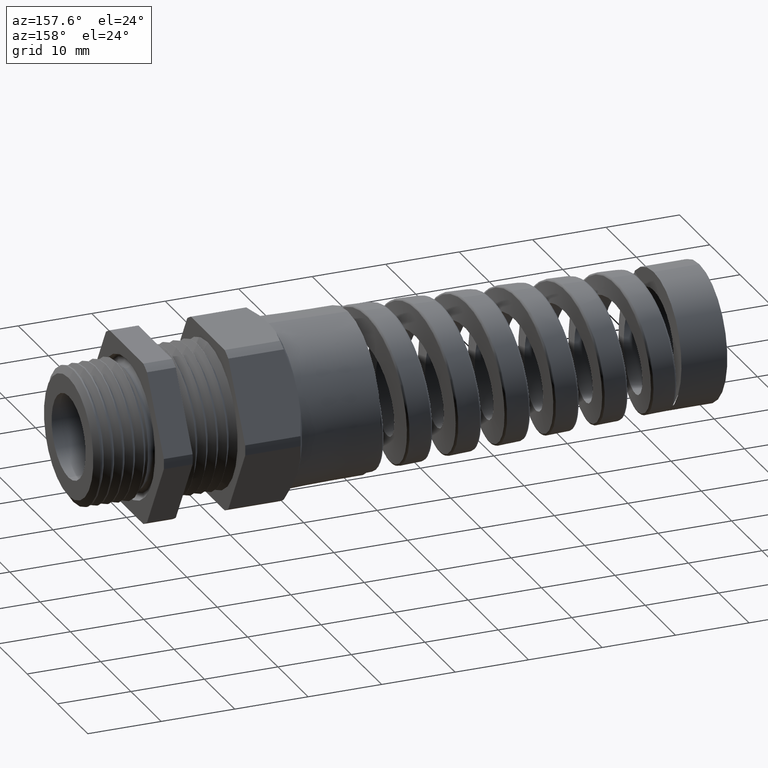
[diagram: clean part render]
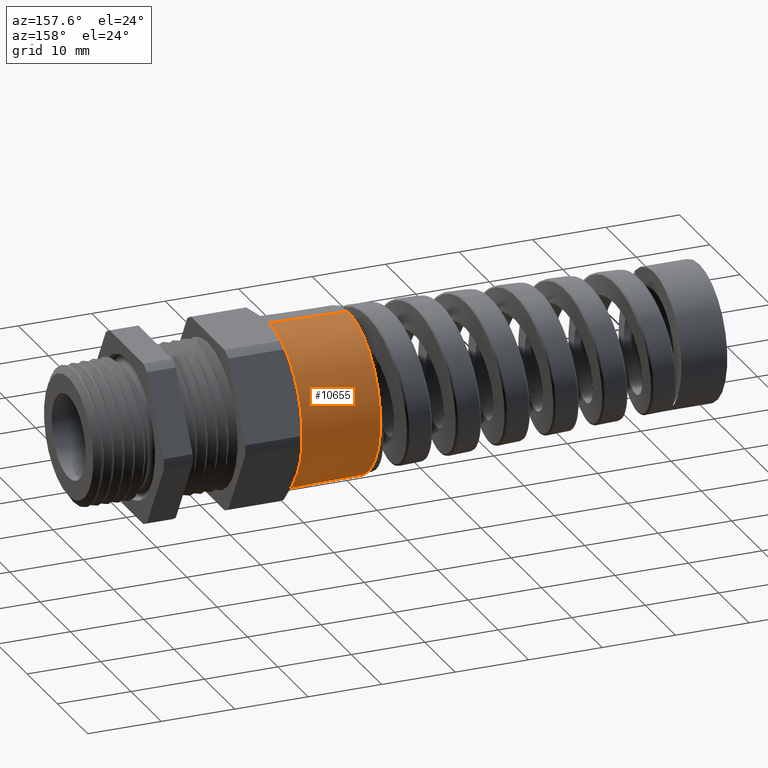
[diagram: same view with one face highlighted and labeled with its STEP entity id]
A machine part, auxiliary view. The second image highlights one B-rep face of the part: STEP entity #10655.
In plain terms, the highlighted conical surface has half-angle 1 deg.
Its self-contained STEP definition (entity closure, byte-faithful):
#1101 = VERTEX_POINT ( 'NONE', #1566 ) ;
#1103 = EDGE_CURVE ( 'NONE', #1131, #1104, #1565, .T. ) ;
#1104 = VERTEX_POINT ( 'NONE', #1561 ) ;
#1113 = VERTEX_POINT ( 'NONE', #1610 ) ;
#1115 = EDGE_CURVE ( 'NONE', #1101, #1113, #1609, .T. ) ;
#1131 = VERTEX_POINT ( 'NONE', #1642 ) ;
#1452 = VERTEX_POINT ( 'NONE', #3092 ) ;
#1552 = VERTEX_POINT ( 'NONE', #3139 ) ;
#1561 = CARTESIAN_POINT ( 'NONE',  ( -0.7624999999999999600, 0.0000000000000000000, -0.4350000000000001600 ) ) ;
#1562 = DIRECTION ( 'NONE',  ( 0.9998476951563912700, -2.137303368083796300E-018, -0.01745240643728355000 ) ) ;
#1563 = VECTOR ( 'NONE', #1562, 39.37007874015748100 ) ;
#1564 = CARTESIAN_POINT ( 'NONE',  ( -0.7624999999999998400, -5.327213576290987000E-017, -0.4350000000000000500 ) ) ;
#1565 = LINE ( 'NONE', #1564, #1563 ) ;
#1566 = CARTESIAN_POINT ( 'NONE',  ( -1.186159999999999900, 0.0000000000000000000, 0.4276049871925114400 ) ) ;
#1606 = DIRECTION ( 'NONE',  ( 0.9998476951563912700, 0.0000000000000000000, 0.01745240643728355000 ) ) ;
#1607 = VECTOR ( 'NONE', #1606, 39.37007874015748100 ) ;
#1608 = CARTESIAN_POINT ( 'NONE',  ( -0.7624999999999998400, 0.0000000000000000000, 0.4350000000000000500 ) ) ;
#1609 = LINE ( 'NONE', #1608, #1607 ) ;
#1610 = CARTESIAN_POINT ( 'NONE',  ( -0.7624999999999998400, 0.0000000000000000000, 0.4350000000000000500 ) ) ;
#1642 = CARTESIAN_POINT ( 'NONE',  ( -1.186159999999999900, -5.281932182469265700E-017, -0.4276049871925114400 ) ) ;
#3092 = CARTESIAN_POINT ( 'NONE',  ( -0.7624999999999999600, 0.3767210506462309000, -0.2174999999999999700 ) ) ;
#3139 = CARTESIAN_POINT ( 'NONE',  ( -0.7624999999999998400, 0.3767210506462308500, 0.2175000000000001400 ) ) ;
#4351 = DIRECTION ( 'NONE',  ( 0.0000000000000000000, 0.0000000000000000000, 1.000000000000000000 ) ) ;
#4352 = DIRECTION ( 'NONE',  ( -1.000000000000000000, 0.0000000000000000000, 0.0000000000000000000 ) ) ;
#4353 = AXIS2_PLACEMENT_3D ( 'NONE', #4365, #4352, #4351 ) ;
#4354 = CIRCLE ( 'NONE', #4353, 0.4350000000000000500 ) ;
#4365 = CARTESIAN_POINT ( 'NONE',  ( -0.7624999999999999600, 0.0000000000000000000, 0.0000000000000000000 ) ) ;
#4417 = DIRECTION ( 'NONE',  ( 0.0000000000000000000, 0.0000000000000000000, 1.000000000000000000 ) ) ;
#4419 = DIRECTION ( 'NONE',  ( -1.000000000000000000, 0.0000000000000000000, 0.0000000000000000000 ) ) ;
#4420 = CARTESIAN_POINT ( 'NONE',  ( -0.7624999999999999600, 0.0000000000000000000, 0.0000000000000000000 ) ) ;
#4421 = AXIS2_PLACEMENT_3D ( 'NONE', #4420, #4419, #4417 ) ;
#4422 = CIRCLE ( 'NONE', #4421, 0.4350000000000000500 ) ;
#4439 = DIRECTION ( 'NONE',  ( 0.0000000000000000000, 0.0000000000000000000, 1.000000000000000000 ) ) ;
#4441 = DIRECTION ( 'NONE',  ( -1.000000000000000000, 0.0000000000000000000, 0.0000000000000000000 ) ) ;
#4443 = CARTESIAN_POINT ( 'NONE',  ( -0.7624999999999999600, 0.0000000000000000000, 0.0000000000000000000 ) ) ;
#4445 = AXIS2_PLACEMENT_3D ( 'NONE', #4443, #4441, #4439 ) ;
#4451 = CIRCLE ( 'NONE', #4445, 0.4350000000000000500 ) ;
#7049 = CONICAL_SURFACE ( 'NONE', #7050, 0.4350000000000000500, 0.01745329251994333400 ) ;
#7050 = AXIS2_PLACEMENT_3D ( 'NONE', #7053, #7093, #7092 ) ;
#7051 = FACE_OUTER_BOUND ( 'NONE', #10758, .T. ) ;
#7053 = CARTESIAN_POINT ( 'NONE',  ( -0.7624999999999998400, 0.0000000000000000000, 0.0000000000000000000 ) ) ;
#7092 = DIRECTION ( 'NONE',  ( 0.0000000000000000000, 0.0000000000000000000, 1.000000000000000000 ) ) ;
#7093 = DIRECTION ( 'NONE',  ( 1.000000000000000000, 0.0000000000000000000, 0.0000000000000000000 ) ) ;
#7736 = DIRECTION ( 'NONE',  ( 0.0000000000000000000, 0.0000000000000000000, 1.000000000000000000 ) ) ;
#7737 = DIRECTION ( 'NONE',  ( -1.000000000000000000, 0.0000000000000000000, 0.0000000000000000000 ) ) ;
#7738 = CARTESIAN_POINT ( 'NONE',  ( -1.186159999999999900, 0.0000000000000000000, 0.0000000000000000000 ) ) ;
#7739 = AXIS2_PLACEMENT_3D ( 'NONE', #7738, #7737, #7736 ) ;
#7740 = CIRCLE ( 'NONE', #7739, 0.4276049871925114400 ) ;
#10655 = ADVANCED_FACE ( 'NONE', ( #7051 ), #7049, .T. ) ;
#10656 = ORIENTED_EDGE ( 'NONE', *, *, #11627, .T. ) ;
#10659 = ORIENTED_EDGE ( 'NONE', *, *, #1115, .T. ) ;
#10663 = ORIENTED_EDGE ( 'NONE', *, *, #10792, .F. ) ;
#10671 = ORIENTED_EDGE ( 'NONE', *, *, #11623, .T. ) ;
#10674 = ORIENTED_EDGE ( 'NONE', *, *, #11603, .T. ) ;
#10758 = EDGE_LOOP ( 'NONE', ( #10759, #10663, #10659, #10656, #10671, #10674 ) ) ;
#10759 = ORIENTED_EDGE ( 'NONE', *, *, #1103, .F. ) ;
#10792 = EDGE_CURVE ( 'NONE', #1101, #1131, #7740, .T. ) ;
#11603 = EDGE_CURVE ( 'NONE', #1452, #1104, #4354, .T. ) ;
#11623 = EDGE_CURVE ( 'NONE', #1552, #1452, #4451, .T. ) ;
#11627 = EDGE_CURVE ( 'NONE', #1113, #1552, #4422, .T. ) ;